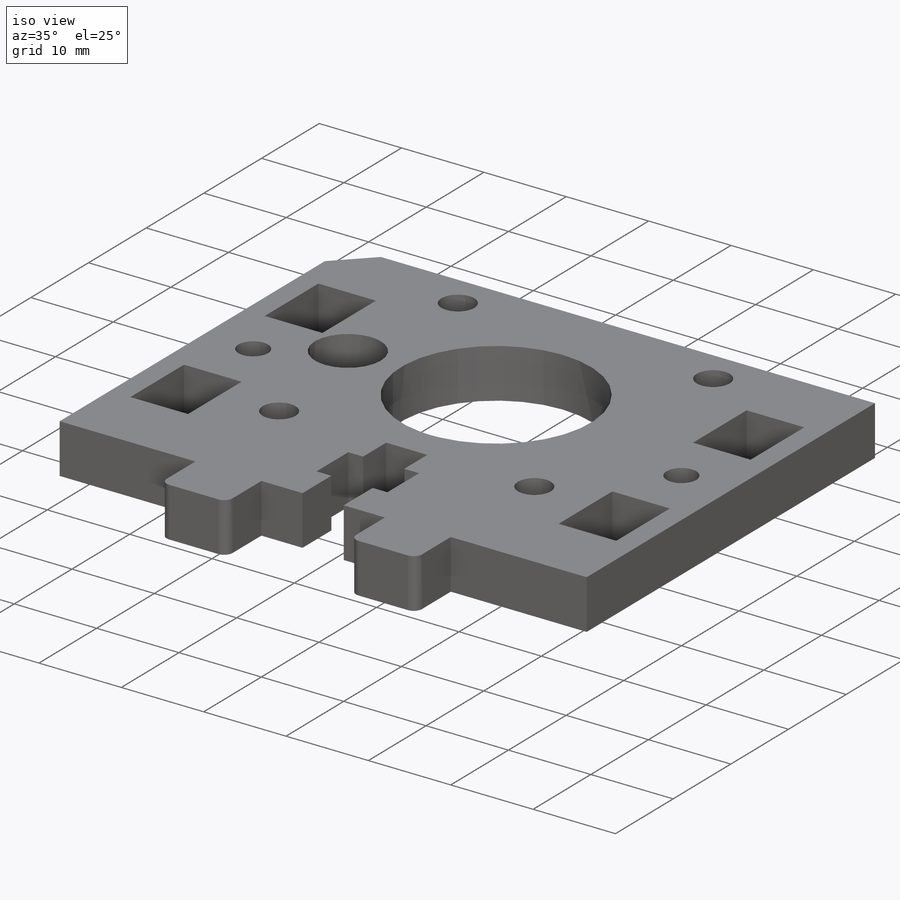
[diagram: iso view]
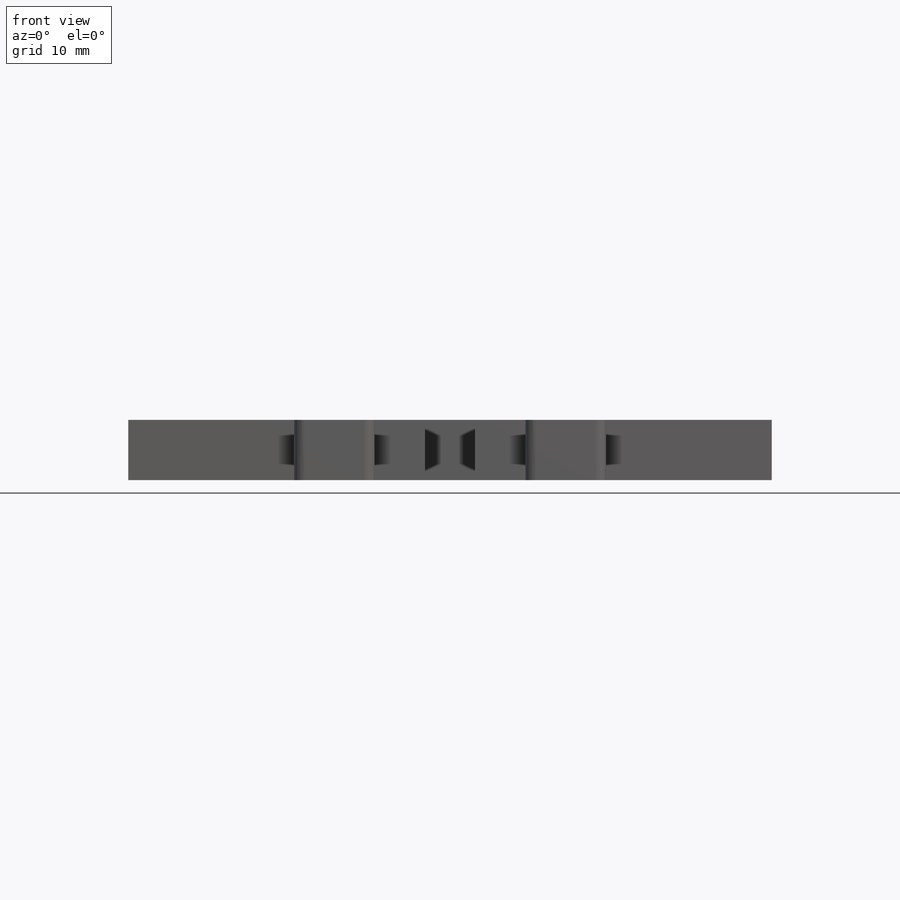
[diagram: front view]
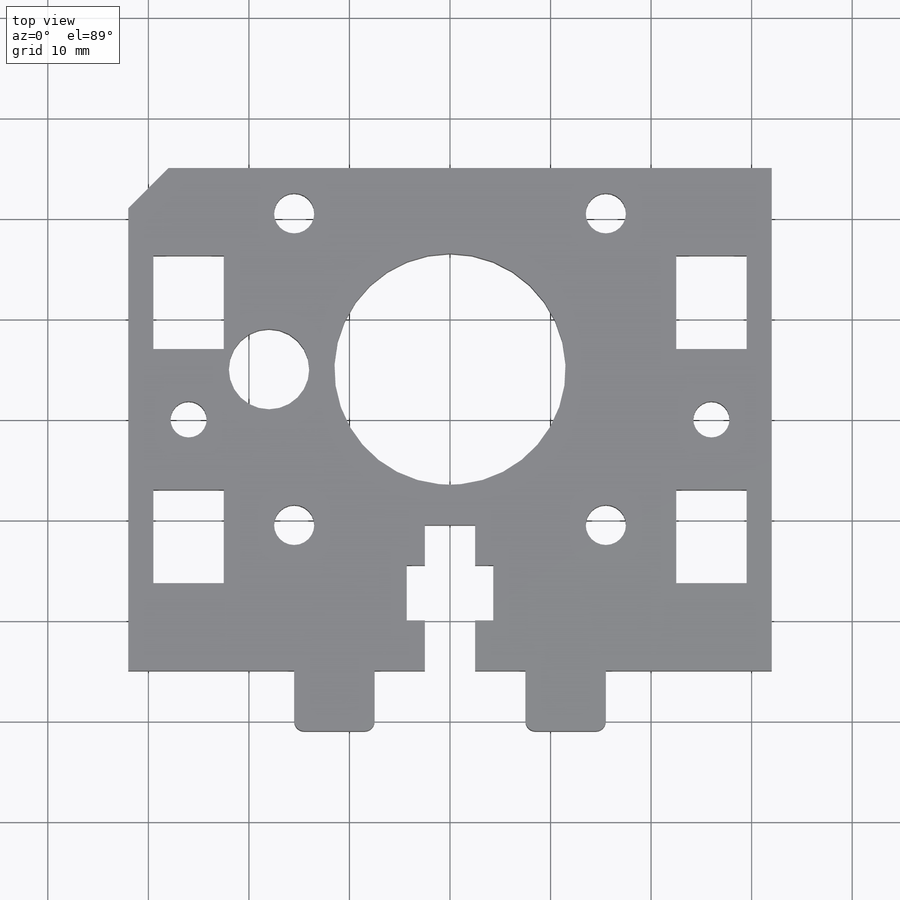
[diagram: top view]
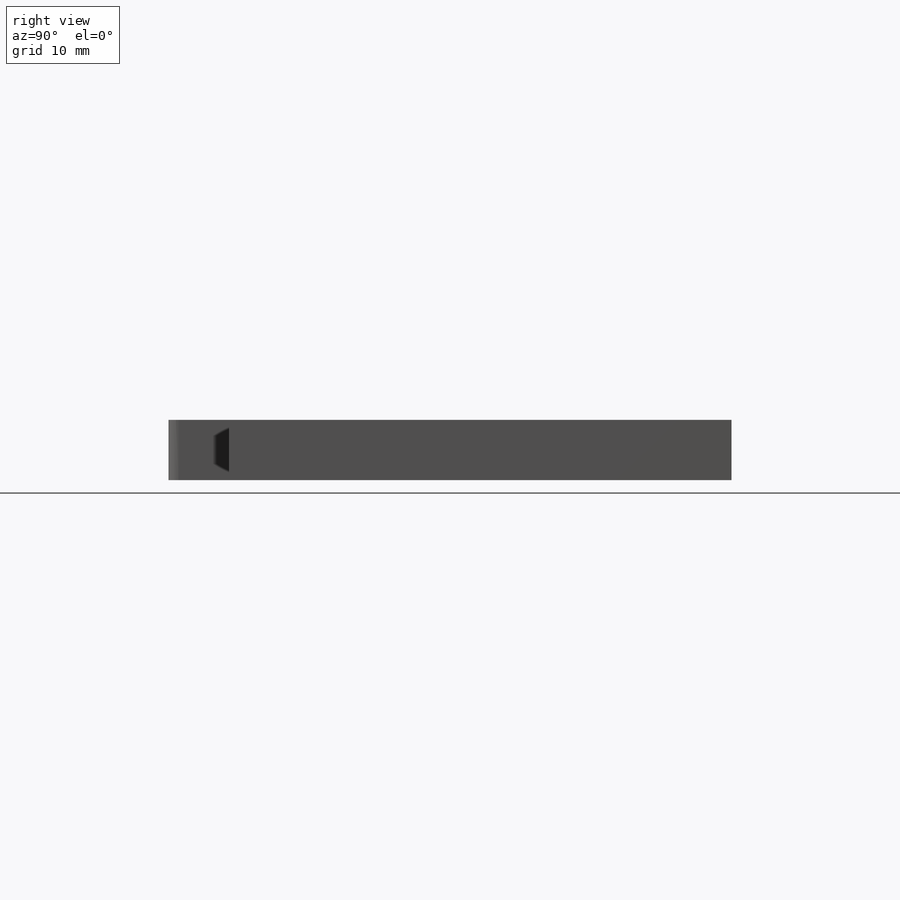
[diagram: right view]
SOLIDWORKS PART (.sldprt)
format: sldprt  version: not decoded by parser v0  size: 273,920 bytes
history: native  units: mm
features: material x3, plane x3, sketch x2, extrude x2, cut_extrude x1, chamfer x1 + 2 further entries (+10 scaffold rows collapsed)
feature tree (24):
  scaffold x10  (default folders/planes/origin — collapsed)
  material  "Matériau <non spécifié>"
  material  "Plan de dessus"
  material  "Plan de droite"
  plane  "Plan de face"
  sketch  "Esquisse2"  dims[D1=3.6mm D2=9.3mm D3=7.0mm D4=7.0mm]
  "Bloc-attache-femelle-2"
  extrude  "Boss.-Extru.1"  Depth=6mm
  plane  "Esquisse3"
  "Bloc-attache-male-1"
  sketch  "Bloc-attache-male"  dims[D7=1.0mm D1=5.0mm D2=5.0mm D3=5.5mm D4=1.8mm D5=4.0mm D6=2.5mm]
  extrude  "Boss.-Extru.2"  Depth=6mm
  cut_extrude  "Enlèv. mat.-Extru.1"  [1 undecoded]
  plane  "Esquisse3<3>"  Offset=6mm
  chamfer  "Chanfrein1"  Distance=4mm Angle=45deg
decode coverage: 5 of 6 modeling features carry decoded parameters; 2 rows unclassified (native names shown)
note: 1 parameter value undecoded
note: suppression state not decoded; provenance and decode notes live in map.json
